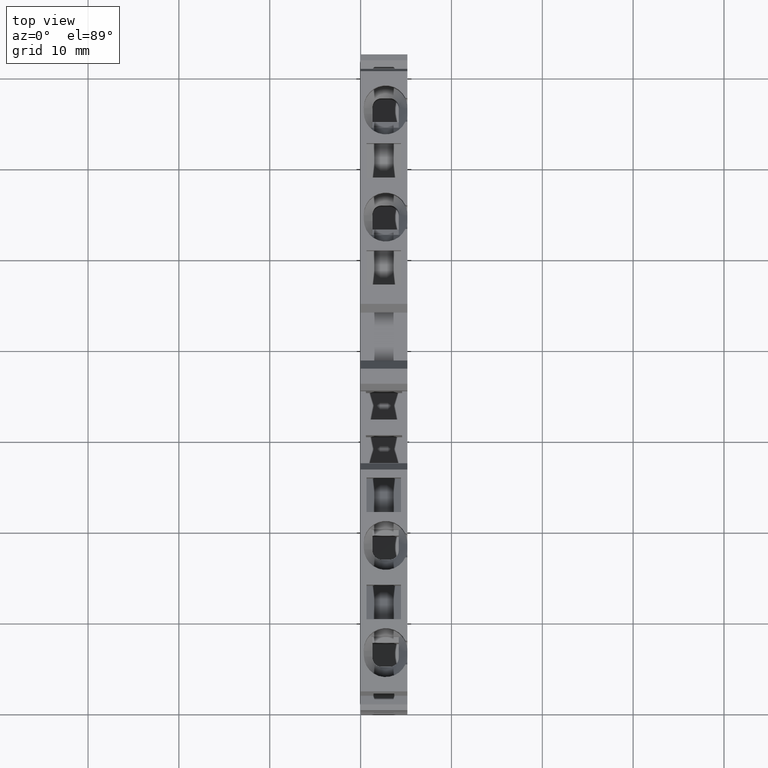
[diagram: clean part render]
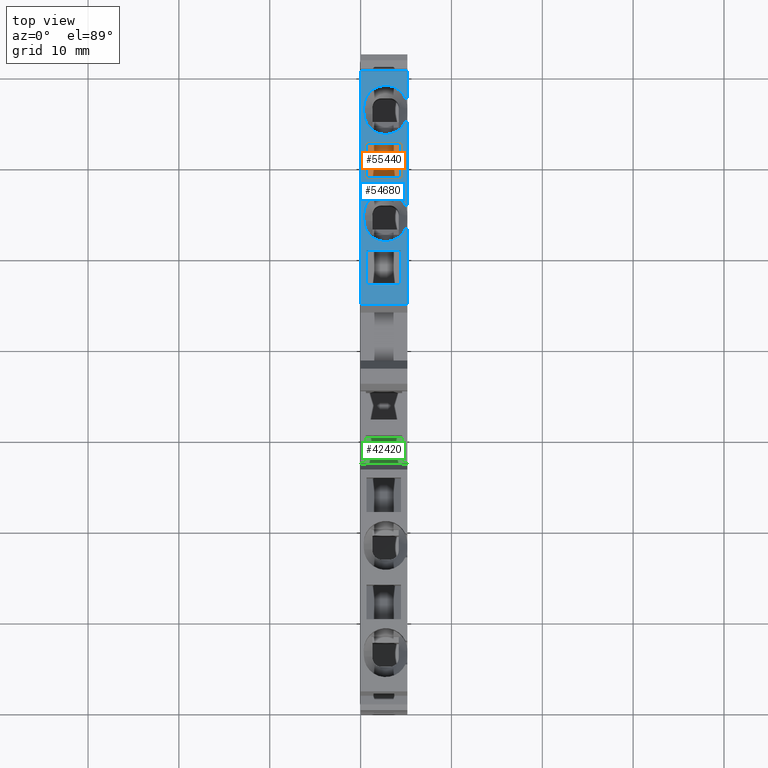
[diagram: same view with three faces highlighted in distinct colors, each labeled with its STEP entity id]
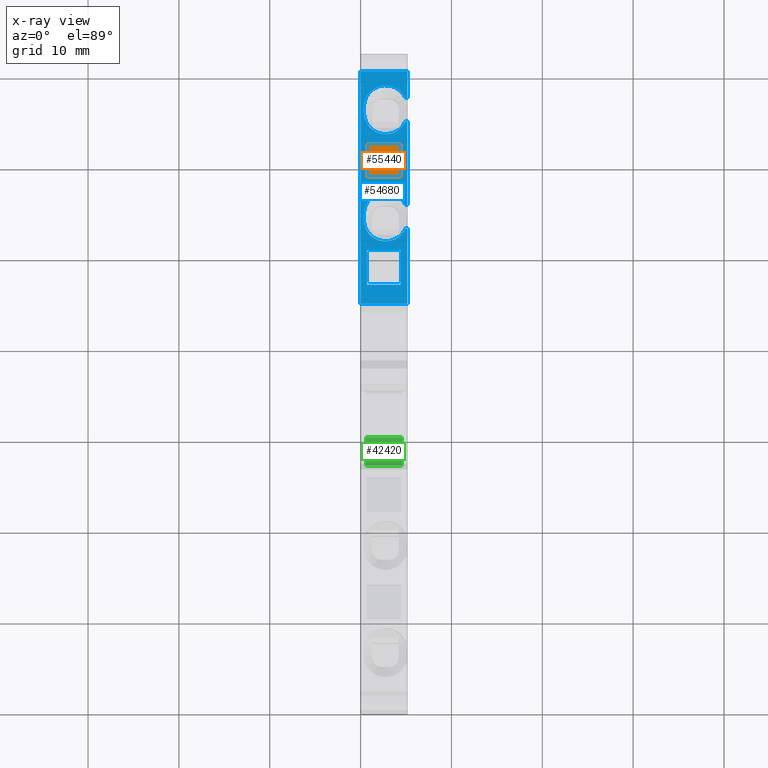
[diagram: x-ray of the same camera — body ghosted, the three highlighted faces saturated]
A machine part, top view with three faces highlighted in distinct colors.
The next image is the same camera in x-ray (body ghosted, the three faces saturated) — at least one of them is partly hidden behind the body in this view.
Their STEP definitions:

[orange] entity #55440 — the highlighted planar face has unit normal (-0, -0.5736, 0.8192).
#54850=CARTESIAN_POINT('',(55.4968952207622,28.8475639616147,
-0.699999999989534));
#54860=VERTEX_POINT('',#54850);
#54940=CARTESIAN_POINT('',(55.4968952207631,28.8475639616141,
-4.49999999998953));
#54950=VERTEX_POINT('',#54940);
#54980=CARTESIAN_POINT('',(55.496895220762,28.8475639616148,
1.04801829985918E-11));
#54990=DIRECTION('',(-2.5196374954563E-13,1.56783702551706E-13,1.));
#55000=VECTOR('',#54990,1.);
#55010=LINE('',#54980,#55000);
#55020=EDGE_CURVE('',#54950,#54860,#55010,.T.);
#55140=CARTESIAN_POINT('',(58.3641920321745,31.4292896068145,
-1.1999999999726));
#55150=DIRECTION('',(-0.669130606359145,0.743144825477136,
-2.85109653784438E-13));
#55160=DIRECTION('',(0.743144825477136,0.669130606359145,
1.11151620614518E-12));
#55170=AXIS2_PLACEMENT_3D('',#55140,#55150,#55160);
#55180=PLANE('',#55170);
#55190=CARTESIAN_POINT('',(-9.86110827307502E-12,-21.1220649411821,
-4.50000000000365));
#55200=DIRECTION('',(-0.743144825477136,-0.669130606359145,
-1.89124833266543E-13));
#55210=VECTOR('',#55200,1.);
#55220=LINE('',#55190,#55210);
#55230=CARTESIAN_POINT('',(58.9440075066143,31.9513578049457,
-4.49999999998865));
#55240=VERTEX_POINT('',#55230);
#55250=EDGE_CURVE('',#55240,#54950,#55220,.T.);
#55260=ORIENTED_EDGE('',*,*,#55250,.T.);
#55270=CARTESIAN_POINT('',(58.9440075066131,31.9513578049464,
1.13574474482151E-11));
#55280=DIRECTION('',(2.51933308188687E-13,-1.56811112072612E-13,-1.));
#55290=VECTOR('',#55280,1.);
#55300=LINE('',#55270,#55290);
#55310=CARTESIAN_POINT('',(58.9440075066133,31.9513578049463,
-0.699999999988657));
#55320=VERTEX_POINT('',#55310);
#55330=EDGE_CURVE('',#55320,#55240,#55300,.T.);
#55340=ORIENTED_EDGE('',*,*,#55330,.T.);
#55350=CARTESIAN_POINT('',(-1.07323502421383E-11,-21.1220649411814,
-0.700000000003658));
#55360=DIRECTION('',(0.743144825477136,0.669130606359145,
1.89124833266543E-13));
#55370=VECTOR('',#55360,1.);
#55380=LINE('',#55350,#55370);
#55390=EDGE_CURVE('',#54860,#55320,#55380,.T.);
#55400=ORIENTED_EDGE('',*,*,#55390,.T.);
#55410=ORIENTED_EDGE('',*,*,#55020,.T.);
#55420=EDGE_LOOP('',(#55410,#55400,#55340,#55260));
#55430=FACE_OUTER_BOUND('',#55420,.T.);
#55440=ADVANCED_FACE('',(#55430),#55180,.T.);

[blue] entity #54680 — the highlighted planar face has unit normal (-0, 0, 1).
#2500=CARTESIAN_POINT('',(66.2701516819859,37.4375136583404,
-5.14999999998752));
#2510=VERTEX_POINT('',#2500);
#2540=CARTESIAN_POINT('',(-9.71208004152374E-12,29.3005621830899,
-5.15000000000226));
#2550=DIRECTION('',(-0.992546151641308,-0.121869343405262,
-2.30978523078026E-13));
#2560=VECTOR('',#2550,1.);
#2570=LINE('',#2540,#2560);
#2580=CARTESIAN_POINT('',(40.8310435482229,34.3139839363718,
-5.14999999999011));
#2590=VERTEX_POINT('',#2580);
#2600=EDGE_CURVE('',#2510,#2590,#2570,.T.);
#52550=CARTESIAN_POINT('',(66.2701516819847,37.4375136583402,
1.24834715639164E-11));
#52560=VERTEX_POINT('',#52550);
#52590=CARTESIAN_POINT('',(66.2701516819848,37.4375136583402,
1.31907986300764E-11));
#52600=DIRECTION('',(-2.29274202385084E-13,-2.80078298176235E-14,1.));
#52610=VECTOR('',#52600,1.);
#52620=LINE('',#52590,#52610);
#52630=EDGE_CURVE('',#2510,#52560,#52620,.T.);
#52770=CARTESIAN_POINT('',(61.7351975567717,36.8806913073606,
1.21525526890996E-11));
#52780=DIRECTION('',(-0.121869343405262,0.992546151641308,
-1.42432803128487E-16));
#52790=DIRECTION('',(0.992546151641308,0.121869343405262,
2.30978523078026E-13));
#52800=AXIS2_PLACEMENT_3D('',#52770,#52780,#52790);
#52810=PLANE('',#52800);
#52820=CARTESIAN_POINT('',(58.389528247555,36.4698947703017,
1.13568740727058E-11));
#52830=DIRECTION('',(2.29274202385084E-13,2.80078298176235E-14,-1.));
#52840=VECTOR('',#52830,1.);
#52850=LINE('',#52820,#52840);
#52860=CARTESIAN_POINT('',(58.3895282475551,36.4698947703017,
-0.699999999988657));
#52870=VERTEX_POINT('',#52860);
#52880=CARTESIAN_POINT('',(58.389528247556,36.4698947703018,
-4.49999999998866));
#52890=VERTEX_POINT('',#52880);
#52900=EDGE_CURVE('',#52870,#52890,#52850,.T.);
#52910=ORIENTED_EDGE('',*,*,#52900,.F.);
#52920=CARTESIAN_POINT('',(-9.86110827307405E-12,29.3005621830899,
-4.50000000000224));
#52930=DIRECTION('',(-0.992546151641308,-0.121869343405262,
-2.30978523078026E-13));
#52940=VECTOR('',#52930,1.);
#52950=LINE('',#52920,#52940);
#52960=CARTESIAN_POINT('',(54.6178526433058,36.0067912373653,
-4.49999999998953));
#52970=VERTEX_POINT('',#52960);
#52980=EDGE_CURVE('',#52890,#52970,#52950,.T.);
#52990=ORIENTED_EDGE('',*,*,#52980,.F.);
#53000=CARTESIAN_POINT('',(54.6178526433048,36.0067912373652,
1.04791556319476E-11));
#53010=DIRECTION('',(-2.29274202385084E-13,-2.80078298176235E-14,1.));
#53020=VECTOR('',#53010,1.);
#53030=LINE('',#53000,#53020);
#53040=CARTESIAN_POINT('',(54.6178526433049,36.0067912373652,
-0.699999999989535));
#53050=VERTEX_POINT('',#53040);
#53060=EDGE_CURVE('',#52970,#53050,#53030,.T.);
#53070=ORIENTED_EDGE('',*,*,#53060,.F.);
#53080=CARTESIAN_POINT('',(-1.07323502421374E-11,29.3005621830898,
-0.700000000002245));
#53090=DIRECTION('',(0.992546151641308,0.121869343405262,
2.30978523078026E-13));
#53100=VECTOR('',#53090,1.);
#53110=LINE('',#53080,#53100);
#53120=EDGE_CURVE('',#53050,#52870,#53110,.T.);
#53130=ORIENTED_EDGE('',*,*,#53120,.F.);
#53140=EDGE_LOOP('',(#53130,#53070,#52990,#52910));
#53150=FACE_BOUND('',#53140,.T.);
#53160=CARTESIAN_POINT('',(-1.07323502421374E-11,29.3005621830898,
-0.700000000002243));
#53170=DIRECTION('',(-0.992546151641308,-0.121869343405262,
-2.30978523078026E-13));
#53180=VECTOR('',#53170,1.);
#53190=LINE('',#53160,#53180);
#53200=CARTESIAN_POINT('',(46.6774836581877,35.0318365181196,
-0.69999999999138));
#53210=VERTEX_POINT('',#53200);
#53220=CARTESIAN_POINT('',(42.9058080539375,34.5687329851831,
-0.699999999992258));
#53230=VERTEX_POINT('',#53220);
#53240=EDGE_CURVE('',#53210,#53230,#53190,.T.);
#53250=ORIENTED_EDGE('',*,*,#53240,.T.);
#53260=CARTESIAN_POINT('',(46.6774836581875,35.0318365181196,
8.63132750038512E-12));
#53270=DIRECTION('',(2.29274202385084E-13,2.80078298176235E-14,-1.));
#53280=VECTOR('',#53270,1.);
#53290=LINE('',#53260,#53280);
#53300=CARTESIAN_POINT('',(46.6774836581886,35.0318365181197,
-4.49999999999138));
#53310=VERTEX_POINT('',#53300);
#53320=EDGE_CURVE('',#53210,#53310,#53290,.T.);
#53330=ORIENTED_EDGE('',*,*,#53320,.F.);
#53340=CARTESIAN_POINT('',(-9.86110827307405E-12,29.3005621830899,
-4.50000000000224));
#53350=DIRECTION('',(-0.992546151641308,-0.121869343405262,
-2.30978523078026E-13));
#53360=VECTOR('',#53350,1.);
#53370=LINE('',#53340,#53360);
#53380=CARTESIAN_POINT('',(42.9058080539384,34.5687329851832,
-4.49999999999226));
#53390=VERTEX_POINT('',#53380);
#53400=EDGE_CURVE('',#53310,#53390,#53370,.T.);
#53410=ORIENTED_EDGE('',*,*,#53400,.F.);
#53420=CARTESIAN_POINT('',(42.9058080539373,34.5687329851831,
7.75360905962694E-12));
#53430=DIRECTION('',(2.29274202385084E-13,2.80078298176235E-14,-1.));
#53440=VECTOR('',#53430,1.);
#53450=LINE('',#53420,#53440);
#53460=EDGE_CURVE('',#53230,#53390,#53450,.T.);
#53470=ORIENTED_EDGE('',*,*,#53460,.T.);
#53480=EDGE_LOOP('',(#53470,#53410,#53330,#53250));
#53490=FACE_BOUND('',#53480,.T.);
#53500=ORIENTED_EDGE('',*,*,#2600,.T.);
#53510=ORIENTED_EDGE('',*,*,#52630,.F.);
#53520=CARTESIAN_POINT('',(-1.08928421838069E-11,29.3005621830898,
-2.25933555573023E-12));
#53530=DIRECTION('',(-0.992546151641308,-0.121869343405262,
-2.30978523078026E-13));
#53540=VECTOR('',#53530,1.);
#53550=LINE('',#53520,#53540);
#53560=CARTESIAN_POINT('',(63.3274451239588,37.0761947257466,
1.21838504801819E-11));
#53570=VERTEX_POINT('',#53560);
#53580=EDGE_CURVE('',#52560,#53570,#53550,.T.);
#53590=ORIENTED_EDGE('',*,*,#53580,.F.);
#53600=CARTESIAN_POINT('',(63.3274451239573,37.0761947257586,
1.25059921719577E-11));
#53610=DIRECTION('',(2.29096229805154E-13,2.94573001632509E-14,-1.));
#53620=VECTOR('',#53610,1.);
#53630=LINE('',#53600,#53620);
#53640=CARTESIAN_POINT('',(63.3274451239503,37.0761947257454,
-0.218257577056545));
#53650=VERTEX_POINT('',#53640);
#53660=EDGE_CURVE('',#53570,#53650,#53630,.T.);
#53670=ORIENTED_EDGE('',*,*,#53660,.F.);
#53680=CARTESIAN_POINT('',(62.3348989723163,36.9543253823536,
-2.39999999998774));
#53690=DIRECTION('',(-0.121869343405148,0.992546151641323,
-1.42432803101199E-16));
#53700=DIRECTION('',(0.992546151641323,0.121869343405148,
2.30978523078026E-13));
#53710=AXIS2_PLACEMENT_3D('',#53680,#53690,#53700);
#53720=CIRCLE('',#53710,2.4);
#53730=CARTESIAN_POINT('',(62.3348989723183,36.9543253823414,
-4.79999999998774));
#53740=VERTEX_POINT('',#53730);
#53750=EDGE_CURVE('',#53650,#53740,#53720,.T.);
#53760=ORIENTED_EDGE('',*,*,#53750,.F.);
#53770=CARTESIAN_POINT('',(-9.79232601235851E-12,29.3005621831176,
-4.80000000000229));
#53780=DIRECTION('',(-0.992546151641338,-0.121869343405022,
-2.31720984725744E-13));
#53790=VECTOR('',#53780,1.);
#53800=LINE('',#53770,#53790);
#53810=CARTESIAN_POINT('',(61.7393712813338,36.8812037762983,
-4.79999999998788));
#53820=VERTEX_POINT('',#53810);
#53830=EDGE_CURVE('',#53740,#53820,#53800,.T.);
#53840=ORIENTED_EDGE('',*,*,#53830,.F.);
#53850=CARTESIAN_POINT('',(61.7393712813317,36.8812037763106,
-2.39999999998788));
#53860=DIRECTION('',(0.121869343405264,-0.992546151641308,
1.4243280312826E-16));
#53870=DIRECTION('',(0.992546151641308,0.121869343405264,
2.30978523078026E-13));
#53880=AXIS2_PLACEMENT_3D('',#53850,#53860,#53870);
#53890=CIRCLE('',#53880,2.4);
#53900=CARTESIAN_POINT('',(60.7468251296915,36.7593344328929,
-0.218257577060944));
#53910=VERTEX_POINT('',#53900);
#53920=EDGE_CURVE('',#53910,#53820,#53890,.T.);
#53930=ORIENTED_EDGE('',*,*,#53920,.T.);
#53940=CARTESIAN_POINT('',(60.7468251296899,36.7593344329055,
1.19054480119548E-11));
#53950=DIRECTION('',(-2.29096229805154E-13,-2.94573001632509E-14,1.));
#53960=VECTOR('',#53950,1.);
#53970=LINE('',#53940,#53960);
#53980=CARTESIAN_POINT('',(60.7468251296915,36.7593344328929,
1.19210963984742E-11));
#53990=VERTEX_POINT('',#53980);
#54000=EDGE_CURVE('',#53910,#53990,#53970,.T.);
#54010=ORIENTED_EDGE('',*,*,#54000,.F.);
#54020=CARTESIAN_POINT('',(-1.08928421838069E-11,29.3005621830898,
-2.25933555573023E-12));
#54030=DIRECTION('',(-0.992546151641308,-0.121869343405262,
-2.30978523078026E-13));
#54040=VECTOR('',#54030,1.);
#54050=LINE('',#54020,#54040);
#54060=CARTESIAN_POINT('',(51.6154005345914,35.6381364735645,
1.09913511862776E-11));
#54070=VERTEX_POINT('',#54060);
#54080=EDGE_CURVE('',#53990,#54070,#54050,.T.);
#54090=ORIENTED_EDGE('',*,*,#54080,.F.);
#54100=CARTESIAN_POINT('',(51.6154005345903,35.6381364735737,
9.78044559963699E-12));
#54110=DIRECTION('',(2.29096229805154E-13,2.94573001632509E-14,-1.));
#54120=VECTOR('',#54110,1.);
#54130=LINE('',#54100,#54120);
#54140=CARTESIAN_POINT('',(51.6154005345914,35.6381364735645,
-0.218257577063248));
#54150=VERTEX_POINT('',#54140);
#54160=EDGE_CURVE('',#54070,#54150,#54130,.T.);
#54170=ORIENTED_EDGE('',*,*,#54160,.F.);
#54180=CARTESIAN_POINT('',(50.6228543829492,35.5162671301687,
-2.39999999999046));
#54190=DIRECTION('',(-0.121869343405148,0.992546151641323,
-1.42432803101199E-16));
#54200=DIRECTION('',(0.992546151641323,0.121869343405148,
2.30978523078026E-13));
#54210=AXIS2_PLACEMENT_3D('',#54180,#54190,#54200);
#54220=CIRCLE('',#54210,2.4);
#54230=CARTESIAN_POINT('',(50.6228543829509,35.5162671301593,
-4.79999999999046));
#54240=VERTEX_POINT('',#54230);
#54250=EDGE_CURVE('',#54150,#54240,#54220,.T.);
#54260=ORIENTED_EDGE('',*,*,#54250,.F.);
#54270=CARTESIAN_POINT('',(-9.79232601235852E-12,29.3005621831119,
-4.80000000000228));
#54280=DIRECTION('',(-0.992546151641338,-0.121869343405022,
-2.31720984725744E-13));
#54290=VECTOR('',#54280,1.);
#54300=LINE('',#54270,#54290);
#54310=CARTESIAN_POINT('',(50.0273266919663,35.4431455241162,
-4.7999999999906));
#54320=VERTEX_POINT('',#54310);
#54330=EDGE_CURVE('',#54240,#54320,#54300,.T.);
#54340=ORIENTED_EDGE('',*,*,#54330,.F.);
#54350=CARTESIAN_POINT('',(50.0273266919646,35.4431455241257,
-2.3999999999906));
#54360=DIRECTION('',(0.121869343405264,-0.992546151641308,
1.4243280312826E-16));
#54370=DIRECTION('',(0.992546151641308,0.121869343405264,
2.30978523078026E-13));
#54380=AXIS2_PLACEMENT_3D('',#54350,#54360,#54370);
#54390=CIRCLE('',#54380,2.4);
#54400=CARTESIAN_POINT('',(49.034780540324,35.3212761807108,
-0.218257577063664));
#54410=VERTEX_POINT('',#54400);
#54420=EDGE_CURVE('',#54410,#54320,#54390,.T.);
#54430=ORIENTED_EDGE('',*,*,#54420,.T.);
#54440=CARTESIAN_POINT('',(49.0347805403228,35.3212761807206,
9.17990143963411E-12));
#54450=DIRECTION('',(-2.29096229805154E-13,-2.94573001632509E-14,1.));
#54460=VECTOR('',#54450,1.);
#54470=LINE('',#54440,#54460);
#54480=CARTESIAN_POINT('',(49.034780540324,35.3212761807108,
1.07285971045699E-11));
#54490=VERTEX_POINT('',#54480);
#54500=EDGE_CURVE('',#54410,#54490,#54470,.T.);
#54510=ORIENTED_EDGE('',*,*,#54500,.F.);
#54520=CARTESIAN_POINT('',(-1.08928421838069E-11,29.3005621830898,
-2.25933555573023E-12));
#54530=DIRECTION('',(-0.992546151641308,-0.121869343405262,
-2.30978523078026E-13));
#54540=VECTOR('',#54530,1.);
#54550=LINE('',#54520,#54540);
#54560=CARTESIAN_POINT('',(40.8310435482217,34.3139839363716,
9.8933073739161E-12));
#54570=VERTEX_POINT('',#54560);
#54580=EDGE_CURVE('',#54490,#54570,#54550,.T.);
#54590=ORIENTED_EDGE('',*,*,#54580,.F.);
#54600=CARTESIAN_POINT('',(40.8310435482217,34.3139839363717,
7.2707841144368E-12));
#54610=DIRECTION('',(2.29274202385084E-13,2.80078298176235E-14,-1.));
#54620=VECTOR('',#54610,1.);
#54630=LINE('',#54600,#54620);
#54640=EDGE_CURVE('',#54570,#2590,#54630,.T.);
#54650=ORIENTED_EDGE('',*,*,#54640,.F.);
#54660=EDGE_LOOP('',(#54650,#54590,#54510,#54430,#54340,#54260,#54170,
#54090,#54010,#53930,#53840,#53760,#53670,#53590,#53510,#53500));
#54670=FACE_OUTER_BOUND('',#54660,.T.);
#54680=ADVANCED_FACE('',(#53150,#53490,#54670),#52810,.T.);

[green] entity #42420 — the highlighted planar face has unit normal (-0, 0, 1).
#42030=CARTESIAN_POINT('',(27.2852129682186,14.3140862531935,
-1.95791875965312));
#42040=DIRECTION('',(-0.121869343405137,0.992546151641323,
1.31792281173345E-15));
#42050=DIRECTION('',(-0.992546151641324,-0.121869343405137,
-1.07403295171097E-12));
#42060=AXIS2_PLACEMENT_3D('',#42030,#42040,#42050);
#42070=PLANE('',#42060);
#42080=CARTESIAN_POINT('',(28.7964459094316,14.4996423263023,
3.9566046320147E-12));
#42090=DIRECTION('',(-2.29096229805167E-13,-2.94573001631537E-14,1.));
#42100=VECTOR('',#42090,1.);
#42110=LINE('',#42080,#42100);
#42120=CARTESIAN_POINT('',(28.7964459094327,14.4996423263025,
-4.57499999999607));
#42130=VERTEX_POINT('',#42120);
#42140=CARTESIAN_POINT('',(28.7964459094318,14.4996423263023,
-0.574999999996067));
#42150=VERTEX_POINT('',#42140);
#42160=EDGE_CURVE('',#42130,#42150,#42110,.T.);
#42170=ORIENTED_EDGE('',*,*,#42160,.F.);
#42180=CARTESIAN_POINT('',(-1.07610095174359E-11,10.9638833597475,
-0.575000000002768));
#42190=DIRECTION('',(-0.992546151641324,-0.121869343405137,
-2.30978523078026E-13));
#42200=VECTOR('',#42190,1.);
#42210=LINE('',#42180,#42200);
#42220=CARTESIAN_POINT('',(25.6699255317422,14.1157538945738,
-0.574999999996794));
#42230=VERTEX_POINT('',#42220);
#42240=EDGE_CURVE('',#42150,#42230,#42210,.T.);
#42250=ORIENTED_EDGE('',*,*,#42240,.F.);
#42260=CARTESIAN_POINT('',(25.6699255317421,14.1157538945738,
3.2290222843144E-12));
#42270=DIRECTION('',(2.29096229805167E-13,2.94573001631537E-14,-1.));
#42280=VECTOR('',#42270,1.);
#42290=LINE('',#42260,#42280);
#42300=CARTESIAN_POINT('',(25.6699255317431,14.1157538945739,
-4.5749999999968));
#42310=VERTEX_POINT('',#42300);
#42320=EDGE_CURVE('',#42230,#42310,#42290,.T.);
#42330=ORIENTED_EDGE('',*,*,#42320,.F.);
#42340=CARTESIAN_POINT('',(-9.84391270789552E-12,10.9638833597476,
-4.57500000000278));
#42350=DIRECTION('',(-0.992546151641324,-0.121869343405137,
-2.30978523078026E-13));
#42360=VECTOR('',#42350,1.);
#42370=LINE('',#42340,#42360);
#42380=EDGE_CURVE('',#42130,#42310,#42370,.T.);
#42390=ORIENTED_EDGE('',*,*,#42380,.T.);
#42400=EDGE_LOOP('',(#42390,#42330,#42250,#42170));
#42410=FACE_OUTER_BOUND('',#42400,.T.);
#42420=ADVANCED_FACE('',(#42410),#42070,.T.);